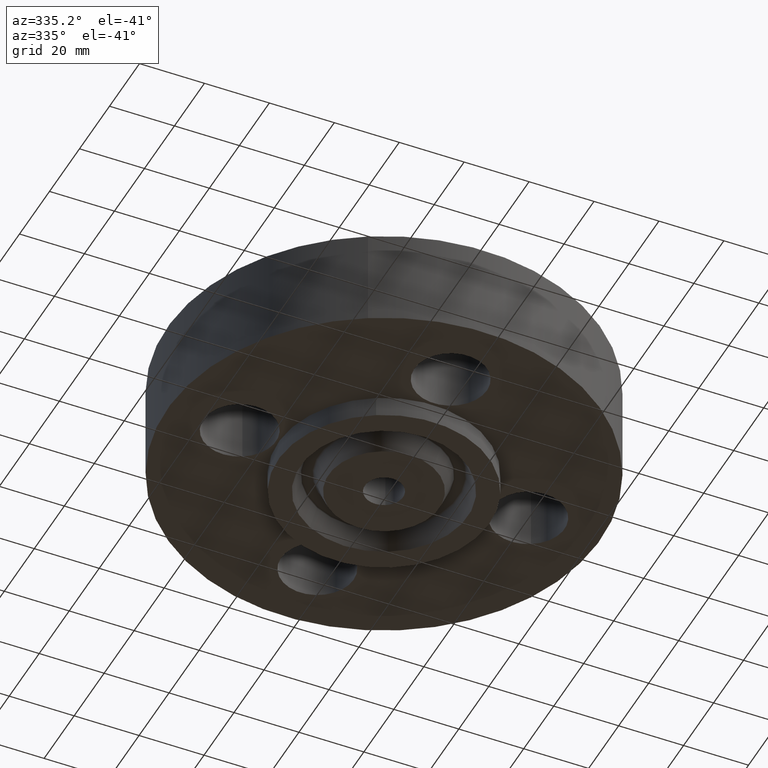
[diagram: clean part render]
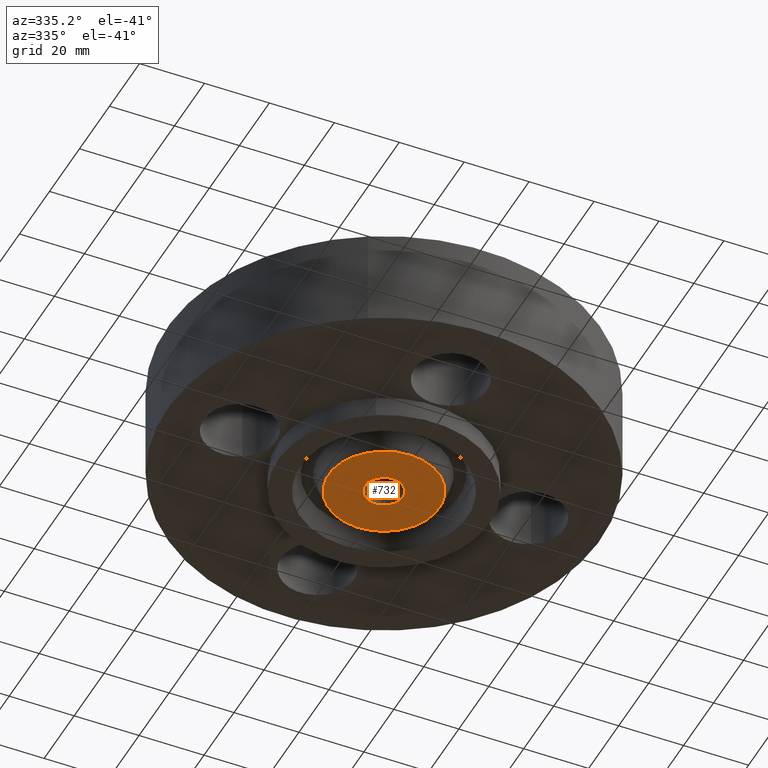
[diagram: same view with one face highlighted and labeled with its STEP entity id]
A machine part, auxiliary view. The second image highlights one B-rep face of the part: STEP entity #732.
In plain terms, the highlighted planar face has unit normal (0, 0, -1).
Its self-contained STEP definition (entity closure, byte-faithful):
#363=AXIS2_PLACEMENT_3D('Circle Axis2P3D',#361,#362,$) ;
#387=AXIS2_PLACEMENT_3D('Circle Axis2P3D',#385,#386,$) ;
#685=AXIS2_PLACEMENT_3D('Plane Axis2P3D',#682,#683,#684) ;
#712=AXIS2_PLACEMENT_3D('Circle Axis2P3D',#710,#711,$) ;
#721=AXIS2_PLACEMENT_3D('Circle Axis2P3D',#719,#720,$) ;
#358=CARTESIAN_POINT('Vertex',(0.111226724957,0.203599154359,-0.250000000001)) ;
#361=CARTESIAN_POINT('Axis2P3D Location',(0.,0.,-0.250000000001)) ;
#365=CARTESIAN_POINT('Vertex',(-0.111226724957,-0.203599154359,-0.250000000001)) ;
#385=CARTESIAN_POINT('Axis2P3D Location',(0.,0.,-0.250000000001)) ;
#682=CARTESIAN_POINT('Axis2P3D Location',(0.,0.232000000001,-0.250000000001)) ;
#710=CARTESIAN_POINT('Axis2P3D Location',(0.,3.49676543189E-017,-0.250000000001)) ;
#714=CARTESIAN_POINT('Vertex',(-0.322173961943,0.589735481593,-0.250000000001)) ;
#716=CARTESIAN_POINT('Vertex',(0.322173961943,-0.589735481593,-0.250000000001)) ;
#719=CARTESIAN_POINT('Axis2P3D Location',(1.39870617276E-016,0.,-0.250000000001)) ;
#362=DIRECTION('Axis2P3D Direction',(0.,0.,-0.0393700787402)) ;
#386=DIRECTION('Axis2P3D Direction',(0.,0.,-0.0393700787402)) ;
#683=DIRECTION('Axis2P3D Direction',(0.,0.,-0.0393700787402)) ;
#684=DIRECTION('Axis2P3D XDirection',(0.0393700787402,0.,0.)) ;
#711=DIRECTION('Axis2P3D Direction',(0.,0.,-0.0393700787402)) ;
#720=DIRECTION('Axis2P3D Direction',(0.,0.,-0.0393700787402)) ;
#725=ORIENTED_EDGE('',*,*,#718,.T.) ;
#726=ORIENTED_EDGE('',*,*,#723,.T.) ;
#729=ORIENTED_EDGE('',*,*,#367,.F.) ;
#730=ORIENTED_EDGE('',*,*,#389,.F.) ;
#731=FACE_BOUND('',#728,.T.) ;
#732=ADVANCED_FACE('PartBody',(#727,#731),#686,.T.) ;
#364=CIRCLE('generated circle',#363,0.232000000001) ;
#388=CIRCLE('generated circle',#387,0.232000000001) ;
#713=CIRCLE('generated circle',#712,0.672000000003) ;
#722=CIRCLE('generated circle',#721,0.672000000003) ;
#367=EDGE_CURVE('',#359,#366,#364,.T.) ;
#389=EDGE_CURVE('',#366,#359,#388,.T.) ;
#718=EDGE_CURVE('',#715,#717,#713,.T.) ;
#723=EDGE_CURVE('',#717,#715,#722,.T.) ;
#724=EDGE_LOOP('',(#725,#726)) ;
#728=EDGE_LOOP('',(#729,#730)) ;
#727=FACE_OUTER_BOUND('',#724,.T.) ;
#686=PLANE('',#685) ;
#359=VERTEX_POINT('',#358) ;
#366=VERTEX_POINT('',#365) ;
#715=VERTEX_POINT('',#714) ;
#717=VERTEX_POINT('',#716) ;